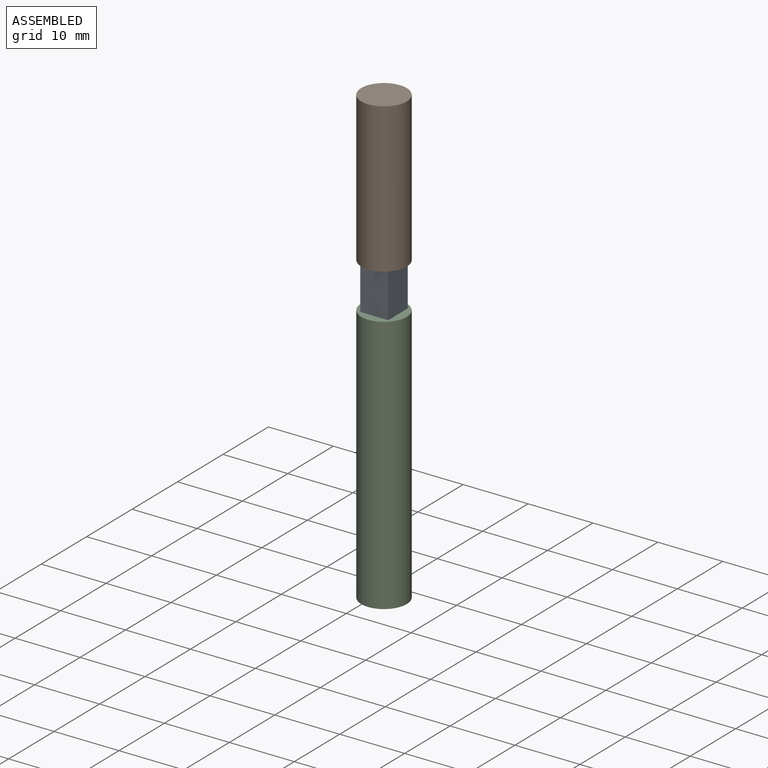
[diagram: assembled view]
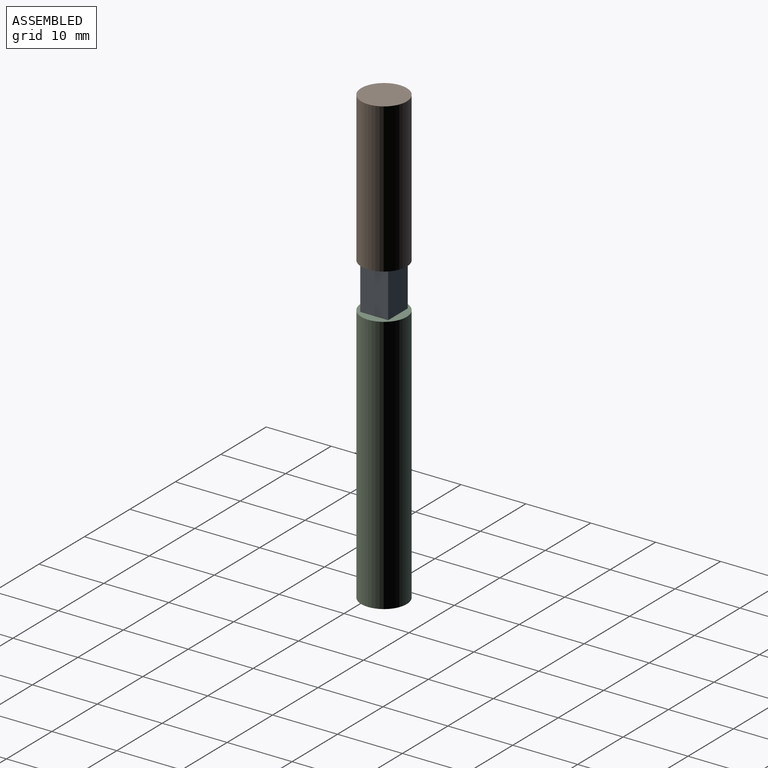
[diagram: assembled view, second angle]
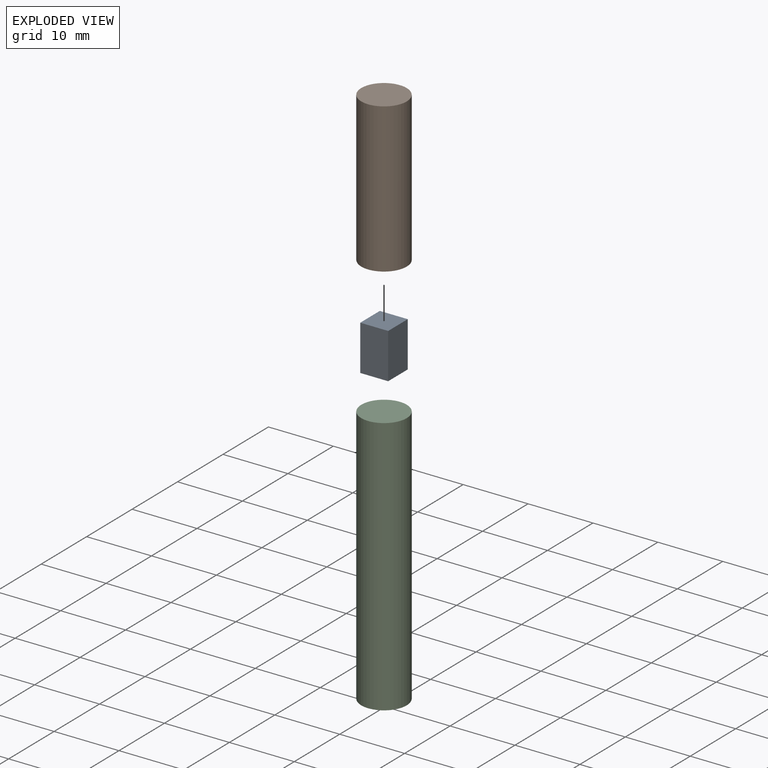
[diagram: exploded view]
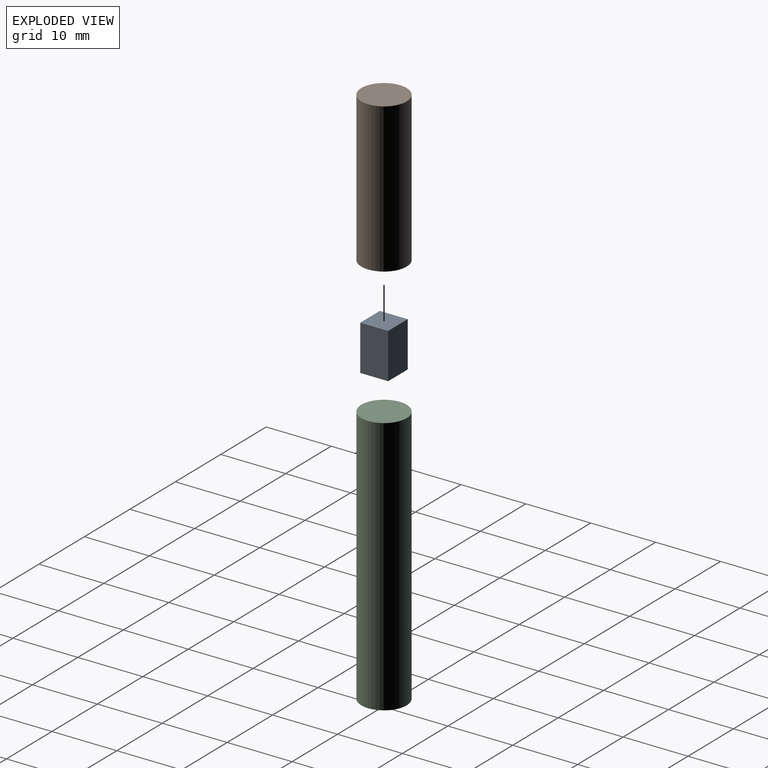
[diagram: exploded view, second angle]
ASSEMBLY  parts=3 mates=2
PART A: 6 faces, bbox 4.3x4.3x7 mm
  f0: plane 7x4.3mm, normal (0,-1,0), area 30.1mm2, adj f1,f3,f4,f5
  f1: plane 7x4.3mm, normal (1,0,0), area 30.1mm2, adj f0,f2,f4,f5
  f2: plane 7x4.3mm, normal (0,1,0), area 30.1mm2, adj f1,f3,f4,f5
  f3: plane 7x4.3mm, normal (-1,0,0), area 30.1mm2, adj f0,f2,f4,f5
  f4: plane 4.3x4.3mm, normal (0,0,1), area 18.5mm2, adj f0,f1,f2,f3
  f5: plane 4.3x4.3mm, normal (0,0,-1), area 18.5mm2, adj f0,f1,f2,f3
PART B: 3 faces, bbox 7x7x23 mm
  f0: cylinder r=3.5mm len=23mm, axis (0,0,-1), area 505.8mm2, adj f1,f2
  f1: plane 7x7mm, normal (0,0,1), area 38.5mm2, adj f0
  f2: plane 7x7mm, normal (0,0,-1), area 38.5mm2, adj f0
PART C: 3 faces, bbox 7x7x40 mm
  f0: cylinder r=3.5mm len=40mm, axis (0,0,-1), area 879.6mm2, adj f1,f2
  f1: plane 7x7mm, normal (0,0,1), area 38.5mm2, adj f0
  f2: plane 7x7mm, normal (0,0,-1), area 38.5mm2, adj f0
PLACE A t=(-0.2,0.03,-3.28)mm
PLACE B rot(axis=(1,0,0),180deg) t=(-0.2,0.03,26.72)mm
PLACE C t=(-0.2,0.03,-43.28)mm
MATE fastened B.f0 <-> A.f4  axis (0,0,-1) through (-0.2,0.03,3.72)mm
MATE fastened C.f0 <-> A.f5  axis (0,0,1) through (-0.2,0.03,-3.28)mm
